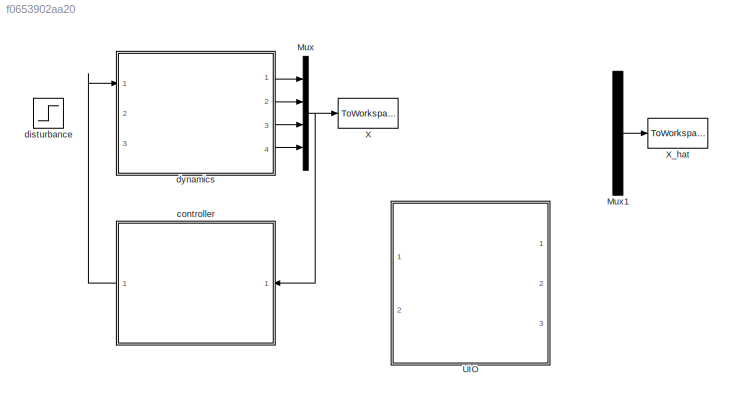
MODEL slx_f0653902aa20
KIND model
BLOCK [Mux] Mux
  DisplayOption = bar
  Ports = [4, 1]
BLOCK [Mux] Mux1
  Commented = on
  DisplayOption = bar
  Inputs = 3
  Ports = [3, 1]
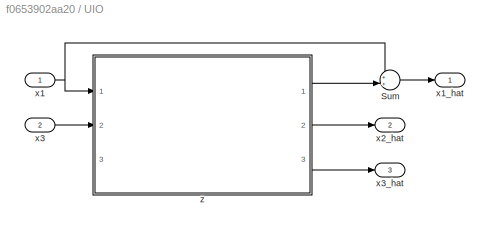
BLOCK [SubSystem] UIO
  Commented = on
  Ports = [2, 3]
  RequestExecContextInheritance = off
BLOCK [Sum] UIO/Sum
  IconShape = round
  InputSameDT = off
  Inputs = ++|
  OutDataTypeStr = Inherit: Inherit via internal rule
  Ports = [2, 1]
  SaturateOnIntegerOverflow = off
BLOCK [Inport] UIO/x1
  IconDisplay = Port number
BLOCK [Outport] UIO/x1_hat
  IconDisplay = Port number
BLOCK [Outport] UIO/x2_hat
  IconDisplay = Port number
  Port = 2
BLOCK [Inport] UIO/x3
  IconDisplay = Port number
  Port = 2
BLOCK [Outport] UIO/x3_hat
  IconDisplay = Port number
  Port = 3
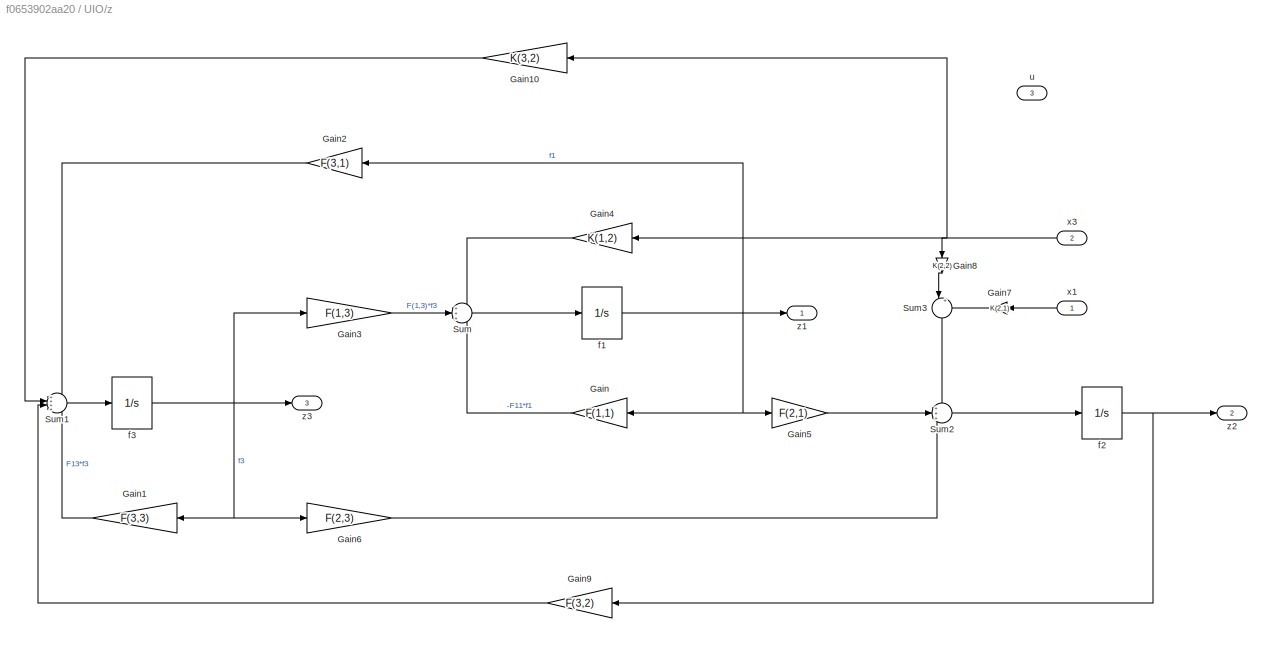
BLOCK [SubSystem] UIO/z
  Ports = [3, 3]
  RequestExecContextInheritance = off
BLOCK [Gain] UIO/z/Gain
  Gain = F(1,1)
  OutDataTypeStr = Inherit: Inherit via internal rule
  ParamDataTypeStr = Inherit: Inherit via internal rule
  SaturateOnIntegerOverflow = off
BLOCK [Gain] UIO/z/Gain1
  Gain = F(3,3)
  OutDataTypeStr = Inherit: Inherit via internal rule
  ParamDataTypeStr = Inherit: Inherit via internal rule
  SaturateOnIntegerOverflow = off
BLOCK [Gain] UIO/z/Gain10
  Gain = K(3,2)
  OutDataTypeStr = Inherit: Inherit via internal rule
  ParamDataTypeStr = Inherit: Inherit via internal rule
  SaturateOnIntegerOverflow = off
BLOCK [Gain] UIO/z/Gain2
  Gain = F(3,1)
  OutDataTypeStr = Inherit: Inherit via internal rule
  ParamDataTypeStr = Inherit: Inherit via internal rule
  SaturateOnIntegerOverflow = off
BLOCK [Gain] UIO/z/Gain3
  Gain = F(1,3)
  OutDataTypeStr = Inherit: Inherit via internal rule
  ParamDataTypeStr = Inherit: Inherit via internal rule
  SaturateOnIntegerOverflow = off
BLOCK [Gain] UIO/z/Gain4
  Gain = K(1,2)
  OutDataTypeStr = Inherit: Inherit via internal rule
  ParamDataTypeStr = Inherit: Inherit via internal rule
  SaturateOnIntegerOverflow = off
BLOCK [Gain] UIO/z/Gain5
  Gain = F(2,1)
  OutDataTypeStr = Inherit: Inherit via internal rule
  ParamDataTypeStr = Inherit: Inherit via internal rule
  SaturateOnIntegerOverflow = off
BLOCK [Gain] UIO/z/Gain6
  Gain = F(2,3)
  OutDataTypeStr = Inherit: Inherit via internal rule
  ParamDataTypeStr = Inherit: Inherit via internal rule
  SaturateOnIntegerOverflow = off
BLOCK [Gain] UIO/z/Gain7
  Gain = K(2,1)
  OutDataTypeStr = Inherit: Inherit via internal rule
  ParamDataTypeStr = Inherit: Inherit via internal rule
  SaturateOnIntegerOverflow = off
BLOCK [Gain] UIO/z/Gain8
  Gain = K(2,2)
  OutDataTypeStr = Inherit: Inherit via internal rule
  ParamDataTypeStr = Inherit: Inherit via internal rule
  SaturateOnIntegerOverflow = off
BLOCK [Gain] UIO/z/Gain9
  Gain = F(3,2)
  OutDataTypeStr = Inherit: Inherit via internal rule
  ParamDataTypeStr = Inherit: Inherit via internal rule
  SaturateOnIntegerOverflow = off
BLOCK [Sum] UIO/z/Sum
  IconShape = round
  InputSameDT = off
  Inputs = +++
  OutDataTypeStr = Inherit: Inherit via internal rule
  Ports = [3, 1]
  SaturateOnIntegerOverflow = off
BLOCK [Sum] UIO/z/Sum1
  IconShape = round
  InputSameDT = off
  Inputs = ++++
  OutDataTypeStr = Inherit: Inherit via internal rule
  Ports = [4, 1]
  SaturateOnIntegerOverflow = off
BLOCK [Sum] UIO/z/Sum2
  IconShape = round
  InputSameDT = off
  Inputs = +++
  OutDataTypeStr = Inherit: Inherit via internal rule
  Ports = [3, 1]
  SaturateOnIntegerOverflow = off
BLOCK [Sum] UIO/z/Sum3
  IconShape = round
  InputSameDT = off
  Inputs = |++
  OutDataTypeStr = Inherit: Inherit via internal rule
  Ports = [2, 1]
  SaturateOnIntegerOverflow = off
BLOCK [Integrator] UIO/z/f1
  InitialCondition = x1_0
  Ports = [1, 1]
BLOCK [Integrator] UIO/z/f2
  InitialCondition = x1_0
  Ports = [1, 1]
BLOCK [Integrator] UIO/z/f3
  InitialCondition = x3_0
  Ports = [1, 1]
BLOCK [Inport] UIO/z/u
  IconDisplay = Port number
  Port = 3
BLOCK [Inport] UIO/z/x1
  IconDisplay = Port number
BLOCK [Inport] UIO/z/x3
  IconDisplay = Port number
  Port = 2
BLOCK [Outport] UIO/z/z1
  IconDisplay = Port number
BLOCK [Outport] UIO/z/z2
  IconDisplay = Port number
  Port = 2
BLOCK [Outport] UIO/z/z3
  IconDisplay = Port number
  Port = 3
BLOCK [ToWorkspace] X
  FixptAsFi = on
  MaxDataPoints = inf
  Ports = [1]
  SampleTime = -1
  Save2DSignal = 3-D array (concatenate along third dimension)
  VariableName = X
BLOCK [ToWorkspace] X_hat
  Commented = on
  FixptAsFi = on
  MaxDataPoints = inf
  Ports = [1]
  SampleTime = -1
  Save2DSignal = 3-D array (concatenate along third dimension)
  VariableName = X_hat
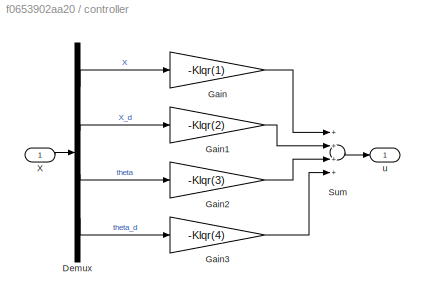
BLOCK [SubSystem] controller
  Ports = [1, 1]
  RequestExecContextInheritance = off
BLOCK [Demux] controller/Demux
  DisplayOption = bar
  Ports = [1, 4]
BLOCK [Gain] controller/Gain
  Gain = -Klqr(1)
  OutDataTypeStr = Inherit: Inherit via internal rule
  ParamDataTypeStr = Inherit: Inherit via internal rule
  SaturateOnIntegerOverflow = off
BLOCK [Gain] controller/Gain1
  Gain = -Klqr(2)
  OutDataTypeStr = Inherit: Inherit via internal rule
  ParamDataTypeStr = Inherit: Inherit via internal rule
  SaturateOnIntegerOverflow = off
BLOCK [Gain] controller/Gain2
  Gain = -Klqr(3)
  OutDataTypeStr = Inherit: Inherit via internal rule
  ParamDataTypeStr = Inherit: Inherit via internal rule
  SaturateOnIntegerOverflow = off
BLOCK [Gain] controller/Gain3
  Gain = -Klqr(4)
  OutDataTypeStr = Inherit: Inherit via internal rule
  ParamDataTypeStr = Inherit: Inherit via internal rule
  SaturateOnIntegerOverflow = off
BLOCK [Sum] controller/Sum
  InputSameDT = off
  Inputs = ++++
  OutDataTypeStr = Inherit: Inherit via internal rule
  Ports = [4, 1]
  SaturateOnIntegerOverflow = off
BLOCK [Inport] controller/X
  IconDisplay = Port number
BLOCK [Outport] controller/u
  IconDisplay = Port number
BLOCK [Step] disturbance
  After = 1e-3
  SampleTime = 0
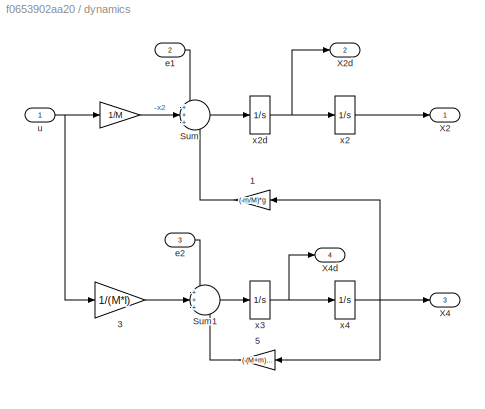
BLOCK [SubSystem] dynamics
  Ports = [3, 4]
  RequestExecContextInheritance = off
BLOCK [Gain] dynamics/  
  Gain = 1/M
  OutDataTypeStr = Inherit: Inherit via internal rule
  ParamDataTypeStr = Inherit: Inherit via internal rule
  SaturateOnIntegerOverflow = off
BLOCK [Gain] dynamics/  1
  Gain = (-m/M)*g
  OutDataTypeStr = Inherit: Inherit via internal rule
  ParamDataTypeStr = Inherit: Inherit via internal rule
  SaturateOnIntegerOverflow = off
BLOCK [Gain] dynamics/  3
  Gain = 1/(M*l)
  OutDataTypeStr = Inherit: Inherit via internal rule
  ParamDataTypeStr = Inherit: Inherit via internal rule
  SaturateOnIntegerOverflow = off
BLOCK [Gain] dynamics/  5
  Gain = (-(M+m)/(M*l))*g
  OutDataTypeStr = Inherit: Inherit via internal rule
  ParamDataTypeStr = Inherit: Inherit via internal rule
  SaturateOnIntegerOverflow = off
BLOCK [Sum] dynamics/Sum
  IconShape = round
  InputSameDT = off
  Inputs = +++
  OutDataTypeStr = Inherit: Inherit via internal rule
  Ports = [3, 1]
  SaturateOnIntegerOverflow = off
BLOCK [Sum] dynamics/Sum1
  IconShape = round
  InputSameDT = off
  Inputs = +++
  OutDataTypeStr = Inherit: Inherit via internal rule
  Ports = [3, 1]
  SaturateOnIntegerOverflow = off
BLOCK [Outport] dynamics/X2 
  IconDisplay = Port number
BLOCK [Outport] dynamics/X2d
  IconDisplay = Port number
  Port = 2
BLOCK [Outport] dynamics/X4 
  IconDisplay = Port number
  Port = 3
BLOCK [Outport] dynamics/X4d
  IconDisplay = Port number
  Port = 4
BLOCK [Inport] dynamics/e1
  IconDisplay = Port number
  Port = 2
BLOCK [Inport] dynamics/e2
  IconDisplay = Port number
  Port = 3
BLOCK [Inport] dynamics/u
  IconDisplay = Port number
BLOCK [Integrator] dynamics/x2
  InitialCondition = x_0
  Ports = [1, 1]
BLOCK [Integrator] dynamics/x2d
  InitialCondition = x_d_0
  Ports = [1, 1]
BLOCK [Integrator] dynamics/x3
  InitialCondition = theta_d_0
  Ports = [1, 1]
BLOCK [Integrator] dynamics/x4
  InitialCondition = theta_0
  Ports = [1, 1]
LINE Mux1:1 -> X_hat:1
NET Mux:1 -> X:1, controller:1
LINE UIO/Sum:1 -> UIO/x1_hat:1
NET UIO/x1:1 -> UIO/Sum:1, UIO/z:1
LINE UIO/x3:1 -> UIO/z:2
LINE UIO/z/Gain10:1 -> UIO/z/Sum1:2
LINE UIO/z/Gain1:1 -> UIO/z/Sum1:4
LINE UIO/z/Gain2:1 -> UIO/z/Sum1:1
LINE UIO/z/Gain3:1 -> UIO/z/Sum:2
LINE UIO/z/Gain4:1 -> UIO/z/Sum:1
LINE UIO/z/Gain5:1 -> UIO/z/Sum2:2
LINE UIO/z/Gain6:1 -> UIO/z/Sum2:3
LINE UIO/z/Gain7:1 -> UIO/z/Sum3:2
LINE UIO/z/Gain8:1 -> UIO/z/Sum3:1
LINE UIO/z/Gain9:1 -> UIO/z/Sum1:3
LINE UIO/z/Gain:1 -> UIO/z/Sum:3
LINE UIO/z/Sum1:1 -> UIO/z/f3:1
LINE UIO/z/Sum2:1 -> UIO/z/f2:1
LINE UIO/z/Sum3:1 -> UIO/z/Sum2:1
LINE UIO/z/Sum:1 -> UIO/z/f1:1
NET UIO/z/f1:1 -> UIO/z/Gain2:1, UIO/z/Gain5:1, UIO/z/Gain:1, UIO/z/z1:1
NET UIO/z/f2:1 -> UIO/z/Gain9:1, UIO/z/z2:1
NET UIO/z/f3:1 -> UIO/z/Gain1:1, UIO/z/Gain3:1, UIO/z/Gain6:1, UIO/z/z3:1
LINE UIO/z/x1:1 -> UIO/z/Gain7:1
NET UIO/z/x3:1 -> UIO/z/Gain10:1, UIO/z/Gain4:1, UIO/z/Gain8:1
LINE UIO/z:1 -> UIO/Sum:2
LINE UIO/z:2 -> UIO/x2_hat:1
LINE UIO/z:3 -> UIO/x3_hat:1
LINE controller/Demux:1 -> controller/Gain:1
LINE controller/Demux:2 -> controller/Gain1:1
LINE controller/Demux:3 -> controller/Gain2:1
LINE controller/Demux:4 -> controller/Gain3:1
LINE controller/Gain1:1 -> controller/Sum:2
LINE controller/Gain2:1 -> controller/Sum:3
LINE controller/Gain3:1 -> controller/Sum:4
LINE controller/Gain:1 -> controller/Sum:1
LINE controller/Sum:1 -> controller/u:1
LINE controller/X:1 -> controller/Demux:1
LINE controller:1 -> dynamics:1
LINE dynamics/  1:1 -> dynamics/Sum:3
LINE dynamics/  3:1 -> dynamics/Sum1:2
LINE dynamics/  5:1 -> dynamics/Sum1:3
LINE dynamics/  :1 -> dynamics/Sum:2
LINE dynamics/Sum1:1 -> dynamics/x3:1
LINE dynamics/Sum:1 -> dynamics/x2d:1
LINE dynamics/e1:1 -> dynamics/Sum:1
LINE dynamics/e2:1 -> dynamics/Sum1:1
NET dynamics/u:1 -> dynamics/  3:1, dynamics/  :1
LINE dynamics/x2:1 -> dynamics/X2 :1
NET dynamics/x2d:1 -> dynamics/X2d:1, dynamics/x2:1
NET dynamics/x3:1 -> dynamics/X4d:1, dynamics/x4:1
NET dynamics/x4:1 -> dynamics/  1:1, dynamics/  5:1, dynamics/X4 :1
LINE dynamics:1 -> Mux:1
LINE dynamics:2 -> Mux:2
LINE dynamics:3 -> Mux:3
LINE dynamics:4 -> Mux:4
note: NET lines group one-source signal fan-out (src -> all destinations, sorted); 1:1 wires keep LINE
